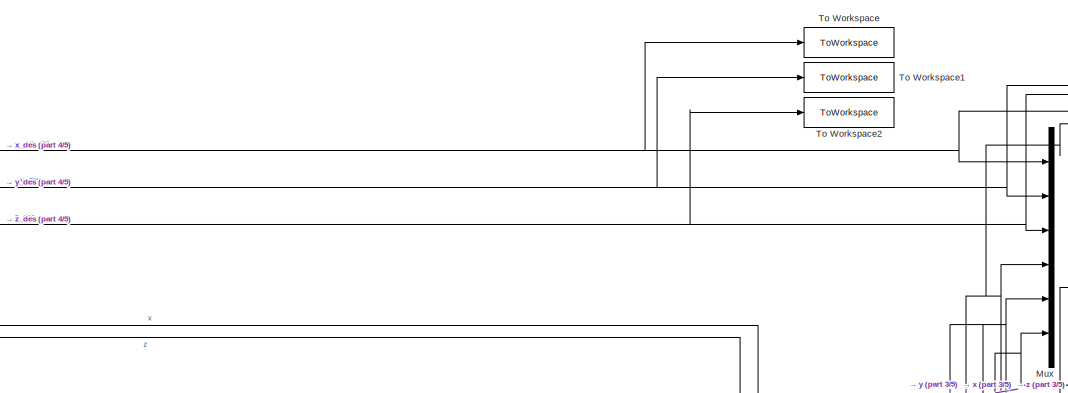
[diagram: root canvas - part 1/5, top right region]
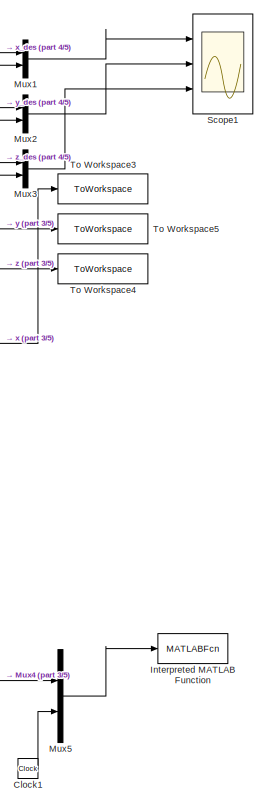
[diagram: root canvas - part 2/5, right side, full height]
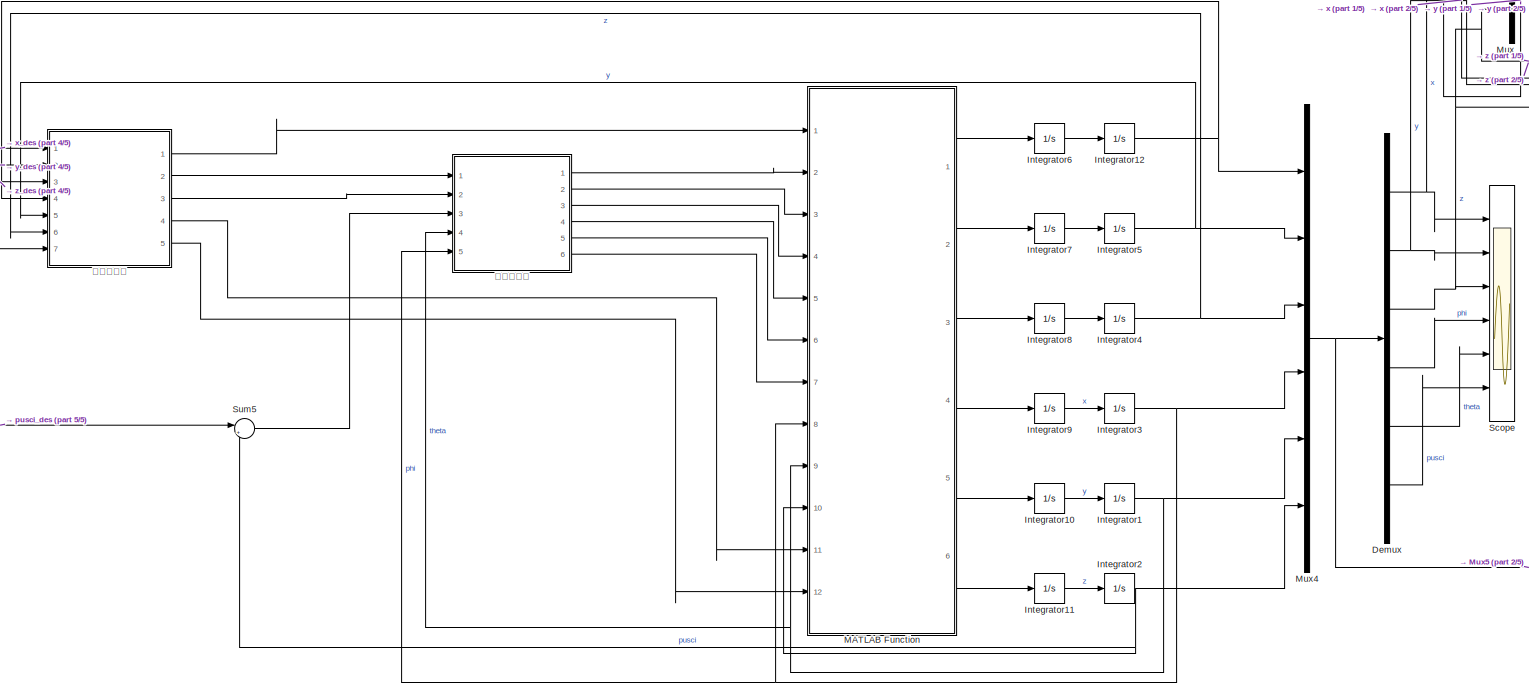
[diagram: root canvas - part 3/5, central region]
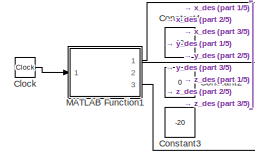
[diagram: root canvas - part 4/5, middle left region]
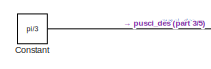
[diagram: root canvas - part 5/5, bottom left region]
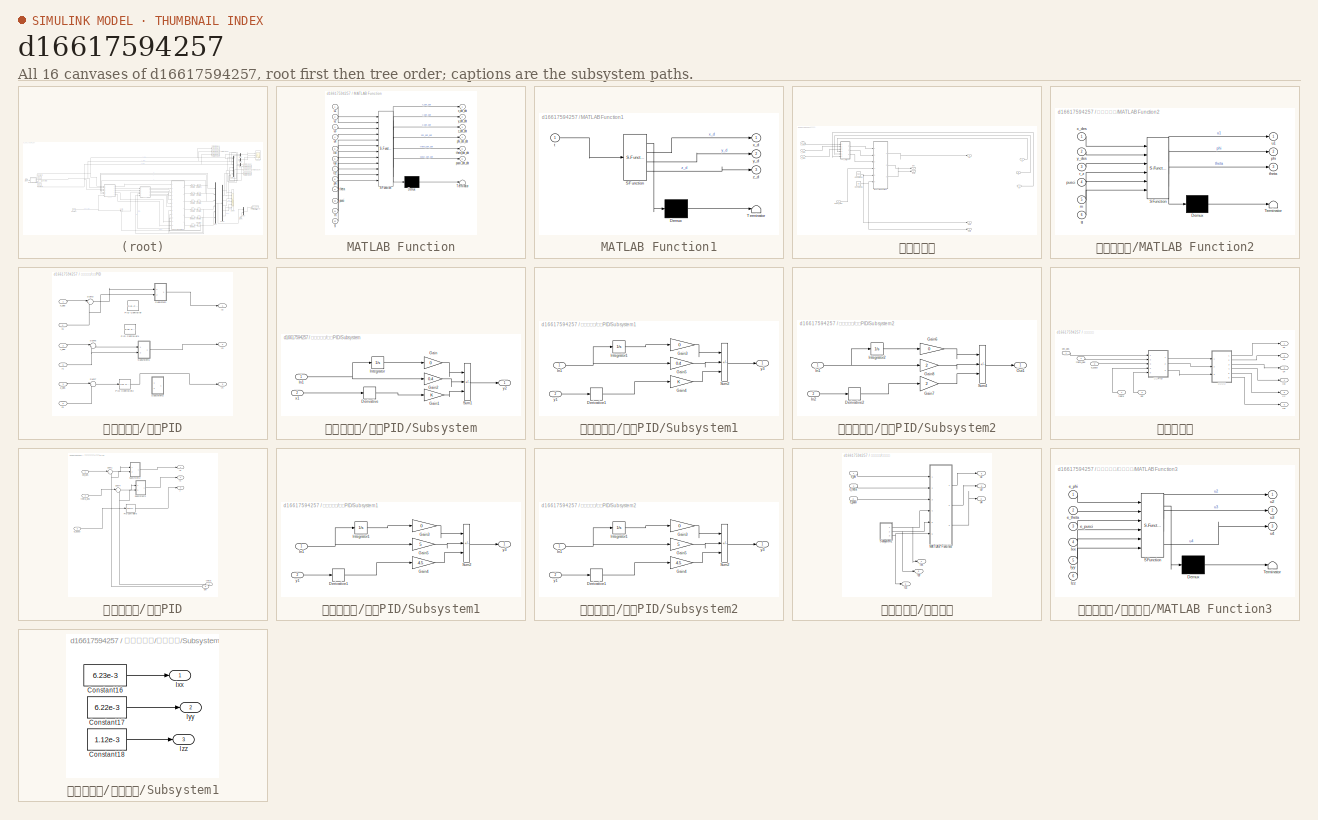
[diagram: thumbnail index - all 16 canvases of the model, root first then tree order]
MODEL slx_d16617594257
KIND model
CONFIG AbsTol = auto
CONFIG EnableMultiTasking = off
CONFIG FixedStep = auto
CONFIG MaxStep = auto
CONFIG MinStep = auto
CONFIG RelTol = 1e-3
CONFIG SampleTimeConstraint = Unconstrained
CONFIG Solver = ode45
CONFIG SolverName = ode45
CONFIG StartTime = 0.0
CONFIG StopTime = inf
BLOCK [Clock] Clock
BLOCK [Clock] Clock1
BLOCK [Constant] Constant
  Value = pi/3
BLOCK [Constant] Constant1
  Value = 10
BLOCK [Constant] Constant2
  Value = 0
BLOCK [Constant] Constant3
  Value = -20
BLOCK [Demux] Demux
  Outputs = 6
  Ports = [1, 6]
BLOCK [Integrator] Integrator1
  Ports = [1, 1]
BLOCK [Integrator] Integrator10
  Ports = [1, 1]
BLOCK [Integrator] Integrator11
  Ports = [1, 1]
BLOCK [Integrator] Integrator12
  Ports = [1, 1]
BLOCK [Integrator] Integrator2
  Ports = [1, 1]
BLOCK [Integrator] Integrator3
  Ports = [1, 1]
BLOCK [Integrator] Integrator4
  Ports = [1, 1]
BLOCK [Integrator] Integrator5
  Ports = [1, 1]
BLOCK [Integrator] Integrator6
  Ports = [1, 1]
BLOCK [Integrator] Integrator7
  Ports = [1, 1]
BLOCK [Integrator] Integrator8
  Ports = [1, 1]
BLOCK [Integrator] Integrator9
  Ports = [1, 1]
BLOCK [MATLABFcn] Interpreted MATLAB Function
  MATLABFcn = plot_tracjectory(u,P)
  OutputDimensions = 0
  Ports = [1]
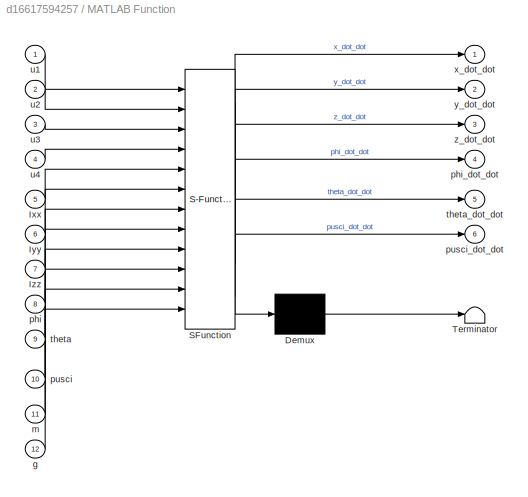
BLOCK [SubSystem] MATLAB Function
  ErrorFcn = Stateflow.Translate.translate
  PermitHierarchicalResolution = ExplicitOnly
  Ports = [12, 6]
  RequestExecContextInheritance = off
  SFBlockType = MATLAB Function
  TreatAsAtomicUnit = on
BLOCK [Demux] MATLAB Function/ Demux 
  Outputs = 1
  Ports = [1, 1]
BLOCK [S-Function] MATLAB Function/ SFunction 
  EnableBusSupport = on
  FunctionName = sf_sfun
  PortCounts = [12 7]
  Ports = [12, 7]
  SFcnIsStateOwnerBlock = off
  SFunctionDeploymentMode = off
  Tag = Stateflow S-Function 2
BLOCK [Terminator] MATLAB Function/ Terminator 
BLOCK [Inport] MATLAB Function/Ixx
  Port = 5
BLOCK [Inport] MATLAB Function/Iyy
  Port = 6
BLOCK [Inport] MATLAB Function/Izz
  Port = 7
BLOCK [Inport] MATLAB Function/g
  Port = 12
BLOCK [Inport] MATLAB Function/m
  Port = 11
BLOCK [Inport] MATLAB Function/phi
  Port = 8
BLOCK [Outport] MATLAB Function/phi_dot_dot
  Port = 4
BLOCK [Inport] MATLAB Function/pusci
  Port = 10
BLOCK [Outport] MATLAB Function/pusci_dot_dot
  Port = 6
BLOCK [Inport] MATLAB Function/theta
  Port = 9
BLOCK [Outport] MATLAB Function/theta_dot_dot
  Port = 5
BLOCK [Inport] MATLAB Function/u1
BLOCK [Inport] MATLAB Function/u2
  Port = 2
BLOCK [Inport] MATLAB Function/u3
  Port = 3
BLOCK [Inport] MATLAB Function/u4
  Port = 4
BLOCK [Outport] MATLAB Function/x_dot_dot
BLOCK [Outport] MATLAB Function/y_dot_dot
  Port = 2
BLOCK [Outport] MATLAB Function/z_dot_dot
  Port = 3
BLOCK [SubSystem] MATLAB Function1
  ErrorFcn = Stateflow.Translate.translate
  PermitHierarchicalResolution = ExplicitOnly
  Ports = [1, 3]
  RequestExecContextInheritance = off
  SFBlockType = MATLAB Function
  TreatAsAtomicUnit = on
BLOCK [Demux] MATLAB Function1/ Demux 
  Outputs = 1
  Ports = [1, 1]
BLOCK [S-Function] MATLAB Function1/ SFunction 
  EnableBusSupport = on
  FunctionName = sf_sfun
  PortCounts = [1 4]
  Ports = [1, 4]
  SFcnIsStateOwnerBlock = off
  SFunctionDeploymentMode = off
  Tag = Stateflow S-Function 1
BLOCK [Terminator] MATLAB Function1/ Terminator 
BLOCK [Inport] MATLAB Function1/t
BLOCK [Outport] MATLAB Function1/x_d
BLOCK [Outport] MATLAB Function1/y_d
  Port = 2
BLOCK [Outport] MATLAB Function1/z_d
  Port = 3
BLOCK [Mux] Mux
  DisplayOption = bar
  Inputs = 6
  Ports = [6, 1]
BLOCK [Mux] Mux1
  DisplayOption = bar
  Inputs = 2
  Ports = [2, 1]
BLOCK [Mux] Mux2
  DisplayOption = bar
  Inputs = 2
  Ports = [2, 1]
BLOCK [Mux] Mux3
  DisplayOption = bar
  Inputs = 2
  Ports = [2, 1]
BLOCK [Mux] Mux4
  DisplayOption = bar
  Inputs = 6
  Ports = [6, 1]
BLOCK [Mux] Mux5
  DisplayOption = bar
  Inputs = 2
  Ports = [2, 1]
BLOCK [Scope] Scope
  Floating = off
  NumInputPorts = 6
  Ports = [6]
  ScopeSpecificationString = Simulink.scopes.TimeScopeBlockCfg('CurrentConfiguration', extmgr.ConfigurationSet(extmgr.Configuration('Core','General UI',true),extmgr.Configuration('Core','Source UI',true),extmgr.Configuration('Sources','WiredSimulink',true),extmgr.Configuration('Visuals','Time Domain',true,'SerializedDisplays',{struct('MinYLimReal','-1.29335','MaxYLimReal','1.18055','YLabelReal','','MinYLimMag','0.00000','MaxY...<+4900ch>
BLOCK [Scope] Scope1
  Floating = off
  NumInputPorts = 3
  Ports = [3]
  ScopeSpecificationString = Simulink.scopes.TimeScopeBlockCfg('CurrentConfiguration', extmgr.ConfigurationSet(extmgr.Configuration('Core','General UI',true),extmgr.Configuration('Core','Source UI',true),extmgr.Configuration('Sources','WiredSimulink',true,'DataLoggingVariableName','ScopeData1'),extmgr.Configuration('Visuals','Time Domain',true,'SerializedDisplays',{struct('MinYLimReal','3.09999999999996','MaxYLimReal','3.1000...<+2736ch>
BLOCK [Sum] Sum5
  Inputs = |+-
  Ports = [2, 1]
BLOCK [ToWorkspace] To Workspace
  FixptAsFi = on
  MaxDataPoints = inf
  Ports = [1]
  SampleTime = -1
  Save2DSignal = 2-D array (concatenate along first dimension)
  VariableName = x_d
BLOCK [ToWorkspace] To Workspace1
  FixptAsFi = on
  MaxDataPoints = inf
  Ports = [1]
  SampleTime = -1
  Save2DSignal = 2-D array (concatenate along first dimension)
  VariableName = y_d
BLOCK [ToWorkspace] To Workspace2
  FixptAsFi = on
  MaxDataPoints = inf
  Ports = [1]
  SampleTime = -1
  Save2DSignal = 2-D array (concatenate along first dimension)
  VariableName = z_d
BLOCK [ToWorkspace] To Workspace3
  FixptAsFi = on
  MaxDataPoints = inf
  Ports = [1]
  SampleTime = -1
  Save2DSignal = 2-D array (concatenate along first dimension)
  VariableName = x
BLOCK [ToWorkspace] To Workspace4
  FixptAsFi = on
  MaxDataPoints = inf
  Ports = [1]
  SampleTime = -1
  Save2DSignal = 2-D array (concatenate along first dimension)
  VariableName = z
BLOCK [ToWorkspace] To Workspace5
  FixptAsFi = on
  MaxDataPoints = inf
  Ports = [1]
  SampleTime = -1
  Save2DSignal = 2-D array (concatenate along first dimension)
  VariableName = y
BLOCK [SubSystem] 位置控制器
  Ports = [7, 5]
  RequestExecContextInheritance = off
BLOCK [Constant] 位置控制器/Constant14
  Value = 0.53
BLOCK [Constant] 位置控制器/Constant15
  Value = 9.8
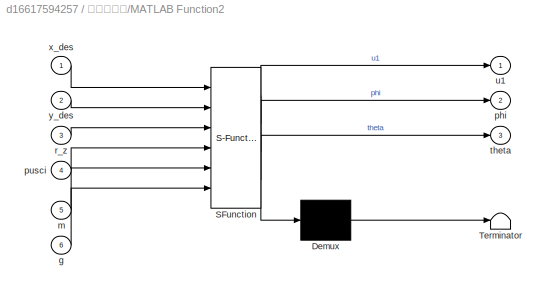
BLOCK [SubSystem] 位置控制器/MATLAB Function2
  ErrorFcn = Stateflow.Translate.translate
  PermitHierarchicalResolution = ExplicitOnly
  Ports = [6, 3]
  RequestExecContextInheritance = off
  SFBlockType = MATLAB Function
  TreatAsAtomicUnit = on
BLOCK [Demux] 位置控制器/MATLAB Function2/ Demux 
  Outputs = 1
  Ports = [1, 1]
BLOCK [S-Function] 位置控制器/MATLAB Function2/ SFunction 
  EnableBusSupport = on
  FunctionName = sf_sfun
  PortCounts = [6 4]
  Ports = [6, 4]
  SFcnIsStateOwnerBlock = off
  SFunctionDeploymentMode = off
  Tag = Stateflow S-Function 3
BLOCK [Terminator] 位置控制器/MATLAB Function2/ Terminator 
BLOCK [Inport] 位置控制器/MATLAB Function2/g
  Port = 6
BLOCK [Inport] 位置控制器/MATLAB Function2/m
  Port = 5
BLOCK [Outport] 位置控制器/MATLAB Function2/phi
  Port = 2
BLOCK [Inport] 位置控制器/MATLAB Function2/pusci
  Port = 4
BLOCK [Inport] 位置控制器/MATLAB Function2/r_z
  Port = 3
BLOCK [Outport] 位置控制器/MATLAB Function2/theta
  Port = 3
BLOCK [Outport] 位置控制器/MATLAB Function2/u1
BLOCK [Inport] 位置控制器/MATLAB Function2/x_des
BLOCK [Inport] 位置控制器/MATLAB Function2/y_des
  Port = 2
BLOCK [Outport] 位置控制器/Out4
  Port = 4
BLOCK [Outport] 位置控制器/Out5
  Port = 5
BLOCK [Outport] 位置控制器/phi
  Port = 2
BLOCK [Inport] 位置控制器/pusci_des
  Port = 7
BLOCK [Outport] 位置控制器/theta
  Port = 3
BLOCK [Outport] 位置控制器/u1
BLOCK [Inport] 位置控制器/x
  Port = 4
BLOCK [Inport] 位置控制器/x_des
BLOCK [Inport] 位置控制器/y
  Port = 5
BLOCK [Inport] 位置控制器/y_des
  Port = 2
BLOCK [Inport] 位置控制器/z
  Port = 6
BLOCK [Inport] 位置控制器/z_des
  Port = 3
BLOCK [SubSystem] 位置控制器/位置PID
  Ports = [6, 3]
  RequestExecContextInheritance = off
BLOCK [Reference] 位置控制器/位置PID/PID Controller  REF=simulink/Continuous/PID Controller
  Ports = [1, 1]
  SourceBlock = simulink/Continuous/PID Controller
  SourceProductBaseCode = SL
  SourceType = PID 1dof
BLOCK [Reference] 位置控制器/位置PID/PID Controller1  REF=simulink/Continuous/PID Controller
  Ports = [1, 1]
  SourceBlock = simulink/Continuous/PID Controller
  SourceProductBaseCode = SL
  SourceType = PID 1dof
BLOCK [Reference] 位置控制器/位置PID/PID Controller2  REF=simulink/Continuous/PID Controller
  Ports = [1, 1]
  SourceBlock = simulink/Continuous/PID Controller
  SourceProductBaseCode = SL
  SourceType = PID 1dof
BLOCK [SubSystem] 位置控制器/位置PID/Subsystem
  Ports = [2, 1]
  RequestExecContextInheritance = off
BLOCK [Derivative] 位置控制器/位置PID/Subsystem/Derivative
BLOCK [Gain] 位置控制器/位置PID/Subsystem/Gain
  Gain = 0
BLOCK [Gain] 位置控制器/位置PID/Subsystem/Gain1
BLOCK [Gain] 位置控制器/位置PID/Subsystem/Gain2
  Gain = 0.4
BLOCK [Inport] 位置控制器/位置PID/Subsystem/In1
BLOCK [Integrator] 位置控制器/位置PID/Subsystem/Integrator
  Ports = [1, 1]
BLOCK [Sum] 位置控制器/位置PID/Subsystem/Sum1
  IconShape = rectangular
  Inputs = |++-
  Ports = [3, 1]
BLOCK [Inport] 位置控制器/位置PID/Subsystem/x1
  Port = 2
BLOCK [Outport] 位置控制器/位置PID/Subsystem/y2
BLOCK [SubSystem] 位置控制器/位置PID/Subsystem1
  Ports = [2, 1]
  RequestExecContextInheritance = off
BLOCK [Derivative] 位置控制器/位置PID/Subsystem1/Derivative1
BLOCK [Gain] 位置控制器/位置PID/Subsystem1/Gain3
  Gain = 0
BLOCK [Gain] 位置控制器/位置PID/Subsystem1/Gain4
BLOCK [Gain] 位置控制器/位置PID/Subsystem1/Gain5
  Gain = 0.4
BLOCK [Inport] 位置控制器/位置PID/Subsystem1/In1
BLOCK [Integrator] 位置控制器/位置PID/Subsystem1/Integrator1
  Ports = [1, 1]
BLOCK [Sum] 位置控制器/位置PID/Subsystem1/Sum2
  IconShape = rectangular
  Inputs = |++-
  Ports = [3, 1]
BLOCK [Inport] 位置控制器/位置PID/Subsystem1/y1
  Port = 2
BLOCK [Outport] 位置控制器/位置PID/Subsystem1/y3
BLOCK [SubSystem] 位置控制器/位置PID/Subsystem2
  Ports = [2, 1]
  RequestExecContextInheritance = off
BLOCK [Derivative] 位置控制器/位置PID/Subsystem2/Derivative2
BLOCK [Gain] 位置控制器/位置PID/Subsystem2/Gain6
  Gain = 0
BLOCK [Gain] 位置控制器/位置PID/Subsystem2/Gain7
  Gain = 2
BLOCK [Gain] 位置控制器/位置PID/Subsystem2/Gain8
  Gain = 2
BLOCK [Inport] 位置控制器/位置PID/Subsystem2/In1
BLOCK [Inport] 位置控制器/位置PID/Subsystem2/In2
  Port = 2
BLOCK [Integrator] 位置控制器/位置PID/Subsystem2/Integrator2
  Ports = [1, 1]
BLOCK [Outport] 位置控制器/位置PID/Subsystem2/Out1
BLOCK [Sum] 位置控制器/位置PID/Subsystem2/Sum4
  IconShape = rectangular
  Inputs = |++-
  Ports = [3, 1]
BLOCK [Sum] 位置控制器/位置PID/Sum3
  Inputs = |+-
  Ports = [2, 1]
BLOCK [Sum] 位置控制器/位置PID/Sum6
  Inputs = |+-
  Ports = [2, 1]
BLOCK [Sum] 位置控制器/位置PID/Sum7
  Inputs = |+-
  Ports = [2, 1]
BLOCK [Inport] 位置控制器/位置PID/x1
  Port = 4
BLOCK [Inport] 位置控制器/位置PID/x_des
BLOCK [Inport] 位置控制器/位置PID/y1
  Port = 5
BLOCK [Outport] 位置控制器/位置PID/y2
BLOCK [Outport] 位置控制器/位置PID/y3
  Port = 2
BLOCK [Outport] 位置控制器/位置PID/y4
  Port = 3
BLOCK [Inport] 位置控制器/位置PID/y_des
  Port = 2
BLOCK [Inport] 位置控制器/位置PID/z1
  Port = 6
BLOCK [Inport] 位置控制器/位置PID/z_des
  Port = 3
BLOCK [SubSystem] 姿态控制器
  Ports = [5, 6]
  RequestExecContextInheritance = off
BLOCK [Outport] 姿态控制器/Ixx
  Port = 4
BLOCK [Outport] 姿态控制器/Iyy
  Port = 5
BLOCK [Outport] 姿态控制器/Izz
  Port = 6
BLOCK [Inport] 姿态控制器/e_pusci
  Port = 3
BLOCK [Inport] 姿态控制器/phi
  Port = 5
BLOCK [Inport] 姿态控制器/phi_des
BLOCK [Inport] 姿态控制器/theta
  Port = 4
BLOCK [Inport] 姿态控制器/theta_des
  Port = 2
BLOCK [Outport] 姿态控制器/u2
BLOCK [Outport] 姿态控制器/u3
  Port = 2
BLOCK [Outport] 姿态控制器/u4
  Port = 3
BLOCK [SubSystem] 姿态控制器/姿态PID
  Ports = [5, 3]
  RequestExecContextInheritance = off
BLOCK [Reference] 姿态控制器/姿态PID/PID Controller5  REF=simulink/Continuous/PID Controller
  Ports = [1, 1]
  SourceBlock = simulink/Continuous/PID Controller
  SourceProductBaseCode = SL
  SourceType = PID 1dof
BLOCK [SubSystem] 姿态控制器/姿态PID/Subsystem1
  Ports = [2, 1]
  RequestExecContextInheritance = off
BLOCK [Derivative] 姿态控制器/姿态PID/Subsystem1/Derivative1
BLOCK [Gain] 姿态控制器/姿态PID/Subsystem1/Gain3
  Gain = 0
BLOCK [Gain] 姿态控制器/姿态PID/Subsystem1/Gain4
  Gain = 4.5
BLOCK [Gain] 姿态控制器/姿态PID/Subsystem1/Gain5
  Gain = 5
BLOCK [Inport] 姿态控制器/姿态PID/Subsystem1/In1
BLOCK [Integrator] 姿态控制器/姿态PID/Subsystem1/Integrator1
  Ports = [1, 1]
BLOCK [Sum] 姿态控制器/姿态PID/Subsystem1/Sum2
  IconShape = rectangular
  Inputs = |++-
  Ports = [3, 1]
BLOCK [Inport] 姿态控制器/姿态PID/Subsystem1/y1
  Port = 2
BLOCK [Outport] 姿态控制器/姿态PID/Subsystem1/y3
BLOCK [SubSystem] 姿态控制器/姿态PID/Subsystem2
  Ports = [2, 1]
  RequestExecContextInheritance = off
BLOCK [Derivative] 姿态控制器/姿态PID/Subsystem2/Derivative1
BLOCK [Gain] 姿态控制器/姿态PID/Subsystem2/Gain3
  Gain = 0
BLOCK [Gain] 姿态控制器/姿态PID/Subsystem2/Gain4
  Gain = 4.5
BLOCK [Gain] 姿态控制器/姿态PID/Subsystem2/Gain5
  Gain = 5
BLOCK [Inport] 姿态控制器/姿态PID/Subsystem2/In1
BLOCK [Integrator] 姿态控制器/姿态PID/Subsystem2/Integrator1
  Ports = [1, 1]
BLOCK [Sum] 姿态控制器/姿态PID/Subsystem2/Sum2
  IconShape = rectangular
  Inputs = |++-
  Ports = [3, 1]
BLOCK [Inport] 姿态控制器/姿态PID/Subsystem2/y1
  Port = 2
BLOCK [Outport] 姿态控制器/姿态PID/Subsystem2/y3
BLOCK [Sum] 姿态控制器/姿态PID/Sum1
  Inputs = |+-
  Ports = [2, 1]
BLOCK [Sum] 姿态控制器/姿态PID/Sum4
  Inputs = |+-
  Ports = [2, 1]
BLOCK [Inport] 姿态控制器/姿态PID/e_pusci
  Port = 3
BLOCK [Inport] 姿态控制器/姿态PID/phi
  Port = 5
BLOCK [Inport] 姿态控制器/姿态PID/phi_des
BLOCK [Inport] 姿态控制器/姿态PID/theta
  Port = 4
BLOCK [Inport] 姿态控制器/姿态PID/theta_des
  Port = 2
BLOCK [Outport] 姿态控制器/姿态PID/y
  Port = 3
BLOCK [Outport] 姿态控制器/姿态PID/y1
  Port = 2
BLOCK [Outport] 姿态控制器/姿态PID/y3
BLOCK [SubSystem] 姿态控制器/姿态解算
  Ports = [3, 6]
  RequestExecContextInheritance = off
BLOCK [Outport] 姿态控制器/姿态解算/Ixx
  Port = 4
BLOCK [Outport] 姿态控制器/姿态解算/Iyy
  Port = 5
BLOCK [Outport] 姿态控制器/姿态解算/Izz
  Port = 6
BLOCK [SubSystem] 姿态控制器/姿态解算/MATLAB Function3
  ErrorFcn = Stateflow.Translate.translate
  PermitHierarchicalResolution = ExplicitOnly
  Ports = [6, 3]
  RequestExecContextInheritance = off
  SFBlockType = MATLAB Function
  TreatAsAtomicUnit = on
BLOCK [Demux] 姿态控制器/姿态解算/MATLAB Function3/ Demux 
  Outputs = 1
  Ports = [1, 1]
BLOCK [S-Function] 姿态控制器/姿态解算/MATLAB Function3/ SFunction 
  EnableBusSupport = on
  FunctionName = sf_sfun
  PortCounts = [6 4]
  Ports = [6, 4]
  SFcnIsStateOwnerBlock = off
  SFunctionDeploymentMode = off
  Tag = Stateflow S-Function 4
BLOCK [Terminator] 姿态控制器/姿态解算/MATLAB Function3/ Terminator 
BLOCK [Inport] 姿态控制器/姿态解算/MATLAB Function3/Ixx
  Port = 4
BLOCK [Inport] 姿态控制器/姿态解算/MATLAB Function3/Iyy
  Port = 5
BLOCK [Inport] 姿态控制器/姿态解算/MATLAB Function3/Izz
  Port = 6
BLOCK [Inport] 姿态控制器/姿态解算/MATLAB Function3/e_phi
BLOCK [Inport] 姿态控制器/姿态解算/MATLAB Function3/e_pusci
  Port = 3
BLOCK [Inport] 姿态控制器/姿态解算/MATLAB Function3/e_theta
  Port = 2
BLOCK [Outport] 姿态控制器/姿态解算/MATLAB Function3/u2
BLOCK [Outport] 姿态控制器/姿态解算/MATLAB Function3/u3
  Port = 2
BLOCK [Outport] 姿态控制器/姿态解算/MATLAB Function3/u4
  Port = 3
BLOCK [SubSystem] 姿态控制器/姿态解算/Subsystem1
  Ports = [0, 3]
  RequestExecContextInheritance = off
BLOCK [Constant] 姿态控制器/姿态解算/Subsystem1/Constant16
  Value = 6.23e-3
BLOCK [Constant] 姿态控制器/姿态解算/Subsystem1/Constant17
  Value = 6.22e-3
BLOCK [Constant] 姿态控制器/姿态解算/Subsystem1/Constant18
  Value = 1.12e-3
BLOCK [Outport] 姿态控制器/姿态解算/Subsystem1/Ixx
BLOCK [Outport] 姿态控制器/姿态解算/Subsystem1/Iyy
  Port = 2
BLOCK [Outport] 姿态控制器/姿态解算/Subsystem1/Izz
  Port = 3
BLOCK [Inport] 姿态控制器/姿态解算/e_phi
BLOCK [Inport] 姿态控制器/姿态解算/e_pusci
  Port = 3
BLOCK [Inport] 姿态控制器/姿态解算/e_theta
  Port = 2
BLOCK [Outport] 姿态控制器/姿态解算/u2
BLOCK [Outport] 姿态控制器/姿态解算/u3
  Port = 2
BLOCK [Outport] 姿态控制器/姿态解算/u4
  Port = 3
LINE Clock1:1 -> Mux5:2
LINE Clock:1 -> MATLAB Function1:1
NET Constant:1 -> Sum5:1, 位置控制器:7
NET Demux:1 -> Mux1:2, Mux:4, Scope:1, To Workspace3:1
NET Demux:2 -> Mux2:2, Mux:5, Scope:2, To Workspace5:1
NET Demux:3 -> Mux3:2, Mux:6, Scope:3, To Workspace4:1
LINE Demux:4 -> Scope:4
LINE Demux:5 -> Scope:5
LINE Demux:6 -> Scope:6
LINE Integrator10:1 -> Integrator1:1
LINE Integrator11:1 -> Integrator2:1
NET Integrator12:1 -> Mux4:1, 位置控制器:4
NET Integrator1:1 -> MATLAB Function:9, Mux4:5, 姿态控制器:4
NET Integrator2:1 -> MATLAB Function:10, Mux4:6, Sum5:2
NET Integrator3:1 -> MATLAB Function:8, Mux4:4, 姿态控制器:5
NET Integrator4:1 -> Mux4:3, 位置控制器:6
NET Integrator5:1 -> Mux4:2, 位置控制器:5
LINE Integrator6:1 -> Integrator12:1
LINE Integrator7:1 -> Integrator5:1
LINE Integrator8:1 -> Integrator4:1
LINE Integrator9:1 -> Integrator3:1
NET MATLAB Function1:1 -> Mux1:1, Mux:1, To Workspace:1, 位置控制器:1
NET MATLAB Function1:2 -> Mux2:1, Mux:2, To Workspace1:1, 位置控制器:2
NET MATLAB Function1:3 -> Mux3:1, Mux:3, To Workspace2:1, 位置控制器:3
LINE MATLAB Function:1 -> Integrator6:1
LINE MATLAB Function:2 -> Integrator7:1
LINE MATLAB Function:3 -> Integrator8:1
LINE MATLAB Function:4 -> Integrator9:1
LINE MATLAB Function:5 -> Integrator10:1
LINE MATLAB Function:6 -> Integrator11:1
LINE Mux1:1 -> Scope1:1
LINE Mux2:1 -> Scope1:2
LINE Mux3:1 -> Scope1:3
NET Mux4:1 -> Demux:1, Mux5:1
LINE Mux5:1 -> Interpreted MATLAB Function:1
LINE Sum5:1 -> 姿态控制器:3
NET 位置控制器/Constant14:1 -> 位置控制器/MATLAB Function2:5, 位置控制器/Out4:1
NET 位置控制器/Constant15:1 -> 位置控制器/MATLAB Function2:6, 位置控制器/Out5:1
LINE 位置控制器/MATLAB Function2:1 -> 位置控制器/u1:1
LINE 位置控制器/MATLAB Function2:2 -> 位置控制器/phi:1
LINE 位置控制器/MATLAB Function2:3 -> 位置控制器/theta:1
LINE 位置控制器/pusci_des:1 -> 位置控制器/MATLAB Function2:4
LINE 位置控制器/x:1 -> 位置控制器/位置PID:4
LINE 位置控制器/x_des:1 -> 位置控制器/位置PID:1
LINE 位置控制器/y:1 -> 位置控制器/位置PID:5
LINE 位置控制器/y_des:1 -> 位置控制器/位置PID:2
LINE 位置控制器/z:1 -> 位置控制器/位置PID:6
LINE 位置控制器/z_des:1 -> 位置控制器/位置PID:3
LINE 位置控制器/位置PID/PID Controller2:1 -> 位置控制器/位置PID/y4:1
LINE 位置控制器/位置PID/Subsystem/Derivative:1 -> 位置控制器/位置PID/Subsystem/Gain1:1
LINE 位置控制器/位置PID/Subsystem/Gain1:1 -> 位置控制器/位置PID/Subsystem/Sum1:3
LINE 位置控制器/位置PID/Subsystem/Gain2:1 -> 位置控制器/位置PID/Subsystem/Sum1:2
LINE 位置控制器/位置PID/Subsystem/Gain:1 -> 位置控制器/位置PID/Subsystem/Sum1:1
NET 位置控制器/位置PID/Subsystem/In1:1 -> 位置控制器/位置PID/Subsystem/Gain2:1, 位置控制器/位置PID/Subsystem/Integrator:1
LINE 位置控制器/位置PID/Subsystem/Integrator:1 -> 位置控制器/位置PID/Subsystem/Gain:1
LINE 位置控制器/位置PID/Subsystem/Sum1:1 -> 位置控制器/位置PID/Subsystem/y2:1
LINE 位置控制器/位置PID/Subsystem/x1:1 -> 位置控制器/位置PID/Subsystem/Derivative:1
LINE 位置控制器/位置PID/Subsystem1/Derivative1:1 -> 位置控制器/位置PID/Subsystem1/Gain4:1
LINE 位置控制器/位置PID/Subsystem1/Gain3:1 -> 位置控制器/位置PID/Subsystem1/Sum2:1
LINE 位置控制器/位置PID/Subsystem1/Gain4:1 -> 位置控制器/位置PID/Subsystem1/Sum2:3
LINE 位置控制器/位置PID/Subsystem1/Gain5:1 -> 位置控制器/位置PID/Subsystem1/Sum2:2
NET 位置控制器/位置PID/Subsystem1/In1:1 -> 位置控制器/位置PID/Subsystem1/Gain5:1, 位置控制器/位置PID/Subsystem1/Integrator1:1
LINE 位置控制器/位置PID/Subsystem1/Integrator1:1 -> 位置控制器/位置PID/Subsystem1/Gain3:1
LINE 位置控制器/位置PID/Subsystem1/Sum2:1 -> 位置控制器/位置PID/Subsystem1/y3:1
LINE 位置控制器/位置PID/Subsystem1/y1:1 -> 位置控制器/位置PID/Subsystem1/Derivative1:1
LINE 位置控制器/位置PID/Subsystem1:1 -> 位置控制器/位置PID/y3:1
LINE 位置控制器/位置PID/Subsystem2/Derivative2:1 -> 位置控制器/位置PID/Subsystem2/Gain7:1
LINE 位置控制器/位置PID/Subsystem2/Gain6:1 -> 位置控制器/位置PID/Subsystem2/Sum4:1
LINE 位置控制器/位置PID/Subsystem2/Gain7:1 -> 位置控制器/位置PID/Subsystem2/Sum4:3
LINE 位置控制器/位置PID/Subsystem2/Gain8:1 -> 位置控制器/位置PID/Subsystem2/Sum4:2
NET 位置控制器/位置PID/Subsystem2/In1:1 -> 位置控制器/位置PID/Subsystem2/Gain8:1, 位置控制器/位置PID/Subsystem2/Integrator2:1
LINE 位置控制器/位置PID/Subsystem2/In2:1 -> 位置控制器/位置PID/Subsystem2/Derivative2:1
LINE 位置控制器/位置PID/Subsystem2/Integrator2:1 -> 位置控制器/位置PID/Subsystem2/Gain6:1
LINE 位置控制器/位置PID/Subsystem2/Sum4:1 -> 位置控制器/位置PID/Subsystem2/Out1:1
LINE 位置控制器/位置PID/Subsystem:1 -> 位置控制器/位置PID/y2:1
LINE 位置控制器/位置PID/Sum3:1 -> 位置控制器/位置PID/Subsystem:1
LINE 位置控制器/位置PID/Sum6:1 -> 位置控制器/位置PID/Subsystem1:1
LINE 位置控制器/位置PID/Sum7:1 -> 位置控制器/位置PID/PID Controller2:1
NET 位置控制器/位置PID/x1:1 -> 位置控制器/位置PID/Subsystem:2, 位置控制器/位置PID/Sum3:2
LINE 位置控制器/位置PID/x_des:1 -> 位置控制器/位置PID/Sum3:1
NET 位置控制器/位置PID/y1:1 -> 位置控制器/位置PID/Subsystem1:2, 位置控制器/位置PID/Sum6:2
LINE 位置控制器/位置PID/y_des:1 -> 位置控制器/位置PID/Sum6:1
LINE 位置控制器/位置PID/z1:1 -> 位置控制器/位置PID/Sum7:2
LINE 位置控制器/位置PID/z_des:1 -> 位置控制器/位置PID/Sum7:1
LINE 位置控制器/位置PID:1 -> 位置控制器/MATLAB Function2:1
LINE 位置控制器/位置PID:2 -> 位置控制器/MATLAB Function2:2
LINE 位置控制器/位置PID:3 -> 位置控制器/MATLAB Function2:3
LINE 位置控制器:1 -> MATLAB Function:1
LINE 位置控制器:2 -> 姿态控制器:1
LINE 位置控制器:3 -> 姿态控制器:2
LINE 位置控制器:4 -> MATLAB Function:11
LINE 位置控制器:5 -> MATLAB Function:12
LINE 姿态控制器/e_pusci:1 -> 姿态控制器/姿态PID:3
LINE 姿态控制器/phi:1 -> 姿态控制器/姿态PID:5
LINE 姿态控制器/phi_des:1 -> 姿态控制器/姿态PID:1
LINE 姿态控制器/theta:1 -> 姿态控制器/姿态PID:4
LINE 姿态控制器/theta_des:1 -> 姿态控制器/姿态PID:2
LINE 姿态控制器/姿态PID/PID Controller5:1 -> 姿态控制器/姿态PID/y:1
LINE 姿态控制器/姿态PID/Subsystem1/Derivative1:1 -> 姿态控制器/姿态PID/Subsystem1/Gain4:1
LINE 姿态控制器/姿态PID/Subsystem1/Gain3:1 -> 姿态控制器/姿态PID/Subsystem1/Sum2:1
LINE 姿态控制器/姿态PID/Subsystem1/Gain4:1 -> 姿态控制器/姿态PID/Subsystem1/Sum2:3
LINE 姿态控制器/姿态PID/Subsystem1/Gain5:1 -> 姿态控制器/姿态PID/Subsystem1/Sum2:2
NET 姿态控制器/姿态PID/Subsystem1/In1:1 -> 姿态控制器/姿态PID/Subsystem1/Gain5:1, 姿态控制器/姿态PID/Subsystem1/Integrator1:1
LINE 姿态控制器/姿态PID/Subsystem1/Integrator1:1 -> 姿态控制器/姿态PID/Subsystem1/Gain3:1
LINE 姿态控制器/姿态PID/Subsystem1/Sum2:1 -> 姿态控制器/姿态PID/Subsystem1/y3:1
LINE 姿态控制器/姿态PID/Subsystem1/y1:1 -> 姿态控制器/姿态PID/Subsystem1/Derivative1:1
LINE 姿态控制器/姿态PID/Subsystem1:1 -> 姿态控制器/姿态PID/y1:1
LINE 姿态控制器/姿态PID/Subsystem2/Derivative1:1 -> 姿态控制器/姿态PID/Subsystem2/Gain4:1
LINE 姿态控制器/姿态PID/Subsystem2/Gain3:1 -> 姿态控制器/姿态PID/Subsystem2/Sum2:1
LINE 姿态控制器/姿态PID/Subsystem2/Gain4:1 -> 姿态控制器/姿态PID/Subsystem2/Sum2:3
LINE 姿态控制器/姿态PID/Subsystem2/Gain5:1 -> 姿态控制器/姿态PID/Subsystem2/Sum2:2
NET 姿态控制器/姿态PID/Subsystem2/In1:1 -> 姿态控制器/姿态PID/Subsystem2/Gain5:1, 姿态控制器/姿态PID/Subsystem2/Integrator1:1
LINE 姿态控制器/姿态PID/Subsystem2/Integrator1:1 -> 姿态控制器/姿态PID/Subsystem2/Gain3:1
LINE 姿态控制器/姿态PID/Subsystem2/Sum2:1 -> 姿态控制器/姿态PID/Subsystem2/y3:1
LINE 姿态控制器/姿态PID/Subsystem2/y1:1 -> 姿态控制器/姿态PID/Subsystem2/Derivative1:1
LINE 姿态控制器/姿态PID/Subsystem2:1 -> 姿态控制器/姿态PID/y3:1
LINE 姿态控制器/姿态PID/Sum1:1 -> 姿态控制器/姿态PID/Subsystem2:1
LINE 姿态控制器/姿态PID/Sum4:1 -> 姿态控制器/姿态PID/Subsystem1:1
LINE 姿态控制器/姿态PID/e_pusci:1 -> 姿态控制器/姿态PID/PID Controller5:1
NET 姿态控制器/姿态PID/phi:1 -> 姿态控制器/姿态PID/Subsystem2:2, 姿态控制器/姿态PID/Sum1:2
LINE 姿态控制器/姿态PID/phi_des:1 -> 姿态控制器/姿态PID/Sum1:1
NET 姿态控制器/姿态PID/theta:1 -> 姿态控制器/姿态PID/Subsystem1:2, 姿态控制器/姿态PID/Sum4:2
LINE 姿态控制器/姿态PID/theta_des:1 -> 姿态控制器/姿态PID/Sum4:1
LINE 姿态控制器/姿态PID:1 -> 姿态控制器/姿态解算:1
LINE 姿态控制器/姿态PID:2 -> 姿态控制器/姿态解算:2
LINE 姿态控制器/姿态PID:3 -> 姿态控制器/姿态解算:3
LINE 姿态控制器/姿态解算/MATLAB Function3:1 -> 姿态控制器/姿态解算/u2:1
LINE 姿态控制器/姿态解算/MATLAB Function3:2 -> 姿态控制器/姿态解算/u3:1
LINE 姿态控制器/姿态解算/MATLAB Function3:3 -> 姿态控制器/姿态解算/u4:1
LINE 姿态控制器/姿态解算/Subsystem1/Constant16:1 -> 姿态控制器/姿态解算/Subsystem1/Ixx:1
LINE 姿态控制器/姿态解算/Subsystem1/Constant17:1 -> 姿态控制器/姿态解算/Subsystem1/Iyy:1
LINE 姿态控制器/姿态解算/Subsystem1/Constant18:1 -> 姿态控制器/姿态解算/Subsystem1/Izz:1
NET 姿态控制器/姿态解算/Subsystem1:1 -> 姿态控制器/姿态解算/Ixx:1, 姿态控制器/姿态解算/MATLAB Function3:4
NET 姿态控制器/姿态解算/Subsystem1:2 -> 姿态控制器/姿态解算/Iyy:1, 姿态控制器/姿态解算/MATLAB Function3:5
NET 姿态控制器/姿态解算/Subsystem1:3 -> 姿态控制器/姿态解算/Izz:1, 姿态控制器/姿态解算/MATLAB Function3:6
LINE 姿态控制器/姿态解算/e_phi:1 -> 姿态控制器/姿态解算/MATLAB Function3:1
LINE 姿态控制器/姿态解算/e_pusci:1 -> 姿态控制器/姿态解算/MATLAB Function3:3
LINE 姿态控制器/姿态解算/e_theta:1 -> 姿态控制器/姿态解算/MATLAB Function3:2
LINE 姿态控制器/姿态解算:1 -> 姿态控制器/u2:1
LINE 姿态控制器/姿态解算:2 -> 姿态控制器/u3:1
LINE 姿态控制器/姿态解算:3 -> 姿态控制器/u4:1
LINE 姿态控制器/姿态解算:4 -> 姿态控制器/Ixx:1
LINE 姿态控制器/姿态解算:5 -> 姿态控制器/Iyy:1
LINE 姿态控制器/姿态解算:6 -> 姿态控制器/Izz:1
LINE 姿态控制器:1 -> MATLAB Function:2
LINE 姿态控制器:2 -> MATLAB Function:3
LINE 姿态控制器:3 -> MATLAB Function:4
LINE 姿态控制器:4 -> MATLAB Function:5
LINE 姿态控制器:5 -> MATLAB Function:6
LINE 姿态控制器:6 -> MATLAB Function:7
note: NET lines group one-source signal fan-out (src -> all destinations, sorted); 1:1 wires keep LINE
CHART MATLAB Function1 states=1 transitions=1
  STATE_LABEL 'eML_blk_kernel()'
  STATE_LABEL 'SCRIPT:\nfunction [x_d,y_d,z_d]= fcn(t)\nx_d=cos(t/2);\ny_d=sin(t/2);\nz_d=-0.2*t;\nend\n'
CHART MATLAB Function states=1 transitions=1
  STATE_LABEL 'eML_blk_kernel()'
  STATE_LABEL 'SCRIPT:\nfunction [x_dot_dot,y_dot_dot,z_dot_dot,phi_dot_dot,theta_dot_dot,pusci_dot_dot]=dynamic(u1,u2,u3,u4,Ixx,Iyy,Izz,phi,theta,pusci,m,g)\n\nx_dot_dot=-u1/m*(sin(pusci)*phi+cos(pusci)*theta);\ny_dot_dot=-u1/m*(-cos(pusci)*phi+theta*sin(pusci));\nz_dot_dot=g-u1/m*cos(theta)*cos(phi);\n\nphi_dot_dot=u2/Ixx;\ntheta_dot_dot=u3/Iyy;\npusci_dot_dot=u4/Izz;\n\nend\n\n\n'
CHART 位置控制器/MATLAB Function2 states=1 transitions=1
  STATE_LABEL 'eML_blk_kernel()'
  STATE_LABEL 'SCRIPT:\nfunction [u1,phi,theta]=position_controller(x_des,y_des, r_z,pusci,m,g)\n\nu1=(g-r_z)*m;\nR=[\ncos(pusci),-sin(pusci);\nsin(pusci),cos(pusci)\n];\nA=[\n    sin(pusci),cos(pusci);\n    -cos(pusci),sin(pusci)\n    ];\nr_des=[x_des;y_des];\ntempt=-1/g*inv(A)*r_des;\nphi=tempt(1);\ntheta=tempt(2);\n\n\n\nend\n'
CHART 姿态控制器/姿态解算/MATLAB Function3 states=1 transitions=1
  STATE_LABEL 'eML_blk_kernel()'
  STATE_LABEL 'SCRIPT:\nfunction [u2,u3,u4] = attitude_controller(e_phi,e_theta,e_pusci,Ixx,Iyy,Izz)\n\nu2=Ixx*e_phi;\nu3=Iyy*e_theta;\nu4=Izz*e_pusci;\n\nend\n'
CHART  states=0 transitions=0
CHART  states=0 transitions=0
CHART  states=0 transitions=0
CHART  states=0 transitions=0
